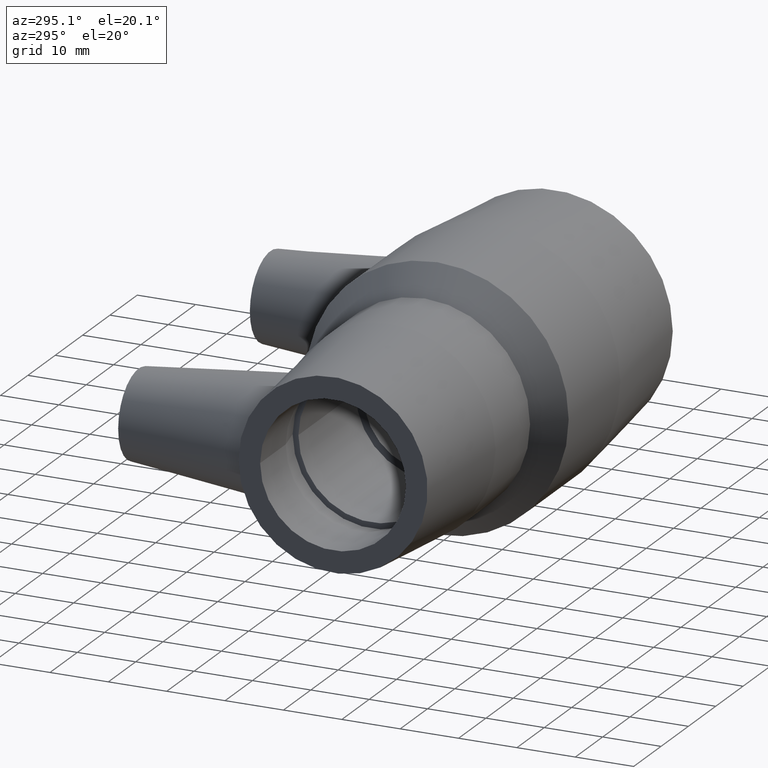
[diagram: clean part render]
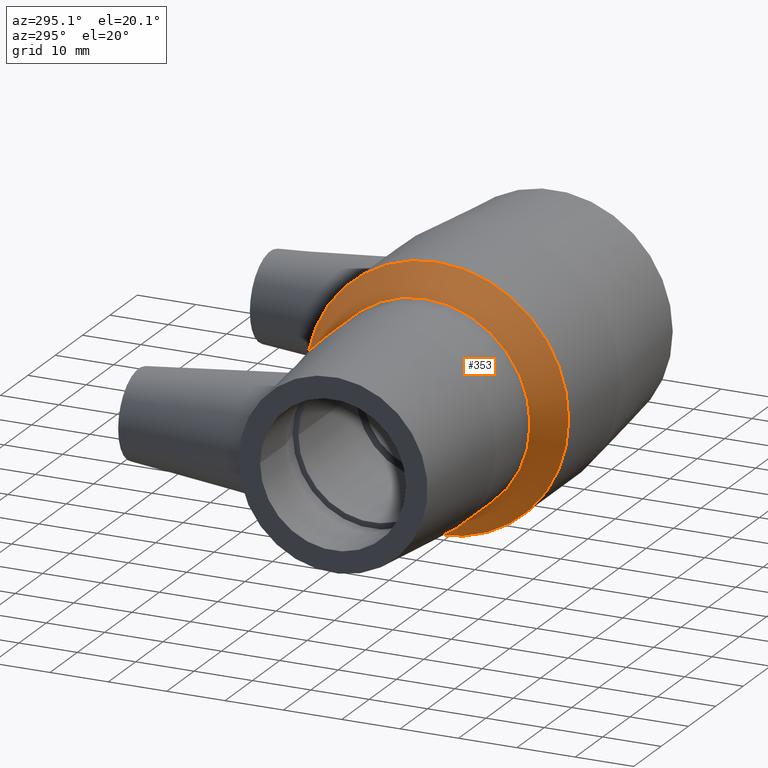
[diagram: same view with one face highlighted and labeled with its STEP entity id]
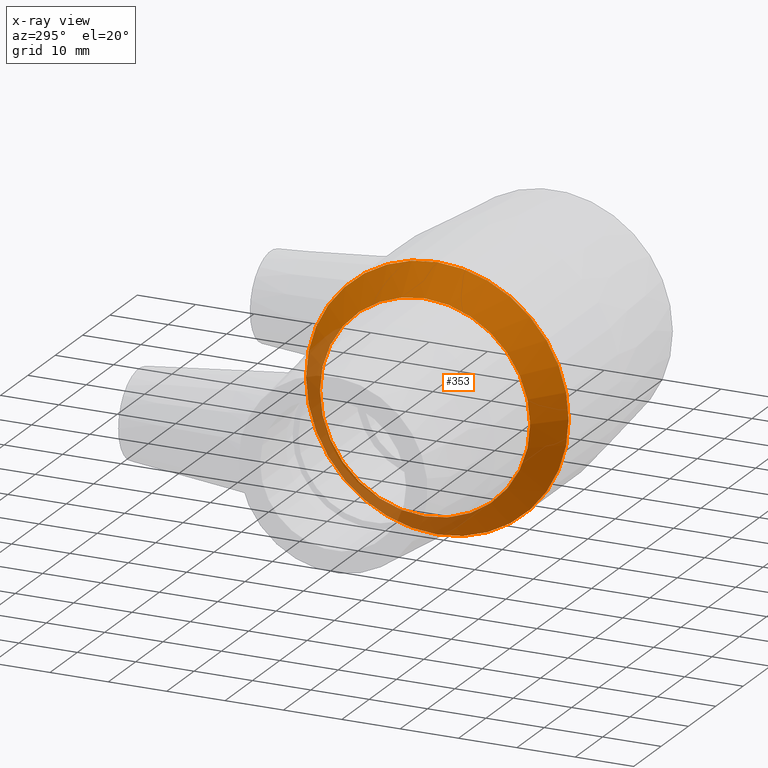
[diagram: x-ray of the same camera — body ghosted, the highlighted face saturated]
A machine part, auxiliary view. The second image highlights one B-rep face of the part: STEP entity #353.
The next image is the same camera in x-ray: the body ghosted, the highlighted face saturated — about 17% of this face is hidden behind the body in this view.
In plain terms, the highlighted conical surface has half-angle 45 deg.
Its self-contained STEP definition (entity closure, byte-faithful):
#22=CONICAL_SURFACE('',#400,20.25,45.);
#39=FACE_BOUND('',#127,.T.);
#83=FACE_OUTER_BOUND('',#126,.T.);
#126=EDGE_LOOP('',(#288));
#127=EDGE_LOOP('',(#289));
#174=CIRCLE('',#398,18.);
#176=CIRCLE('',#401,22.5);
#207=VERTEX_POINT('',#681);
#208=VERTEX_POINT('',#685);
#240=EDGE_CURVE('',#207,#207,#174,.T.);
#242=EDGE_CURVE('',#208,#208,#176,.T.);
#288=ORIENTED_EDGE('',*,*,#242,.F.);
#289=ORIENTED_EDGE('',*,*,#240,.T.);
#353=ADVANCED_FACE('',(#83,#39),#22,.T.);
#398=AXIS2_PLACEMENT_3D('',#682,#487,#488);
#400=AXIS2_PLACEMENT_3D('',#684,#491,#492);
#401=AXIS2_PLACEMENT_3D('',#686,#493,#494);
#487=DIRECTION('center_axis',(1.,1.83697019872103E-16,0.));
#488=DIRECTION('ref_axis',(0.,0.,-1.));
#491=DIRECTION('center_axis',(1.,1.83697019872103E-16,0.));
#492=DIRECTION('ref_axis',(-1.96131485542617E-16,1.,0.));
#493=DIRECTION('center_axis',(1.,1.83697019872103E-16,0.));
#494=DIRECTION('ref_axis',(0.,0.,-1.));
#681=CARTESIAN_POINT('',(-6.87499999999999,18.,0.));
#682=CARTESIAN_POINT('Origin',(-6.87499999999999,6.17681229319946E-15,0.));
#684=CARTESIAN_POINT('Origin',(-4.62499999999999,6.59013058791169E-15,0.));
#685=CARTESIAN_POINT('',(-2.375,22.5,0.));
#686=CARTESIAN_POINT('Origin',(-2.37499999999999,7.00344888262393E-15,0.));